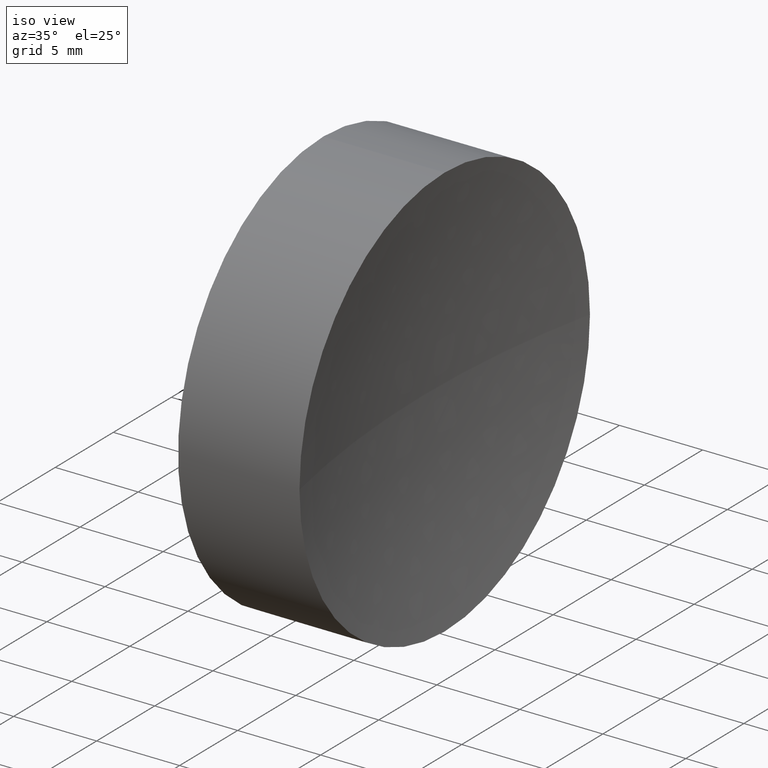
[diagram: clean part render]
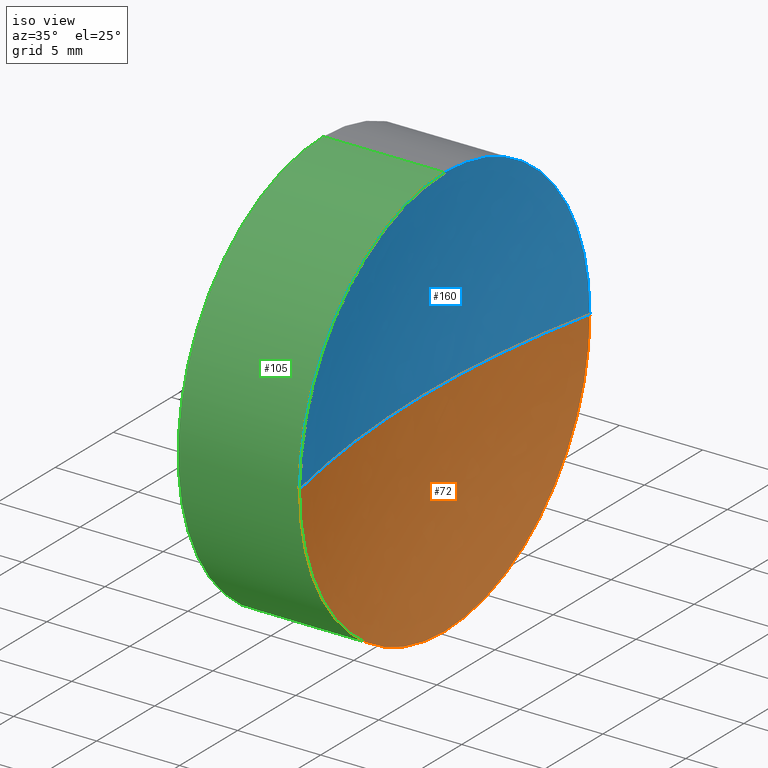
[diagram: same view with three faces highlighted in distinct colors, each labeled with its STEP entity id]
A machine part, iso view with three faces highlighted in distinct colors.
Their STEP definitions:

[orange] entity #72 — the highlighted spherical surface has radius 60 mm.
#2 = DIRECTION ( 'NONE',  ( 1.000000000000000000, 0.0000000000000000000, 0.0000000000000000000 ) ) ;
#5 = DIRECTION ( 'NONE',  ( 0.0000000000000000000, 0.0000000000000000000, 1.000000000000000000 ) ) ;
#7 = FACE_OUTER_BOUND ( 'NONE', #111, .T. ) ;
#12 = ORIENTED_EDGE ( 'NONE', *, *, #133, .F. ) ;
#19 = DIRECTION ( 'NONE',  ( -1.000000000000000000, -0.0000000000000000000, -0.0000000000000000000 ) ) ;
#23 = CIRCLE ( 'NONE', #35, 12.50000000000003900 ) ;
#24 = VERTEX_POINT ( 'NONE', #185 ) ;
#31 = VERTEX_POINT ( 'NONE', #58 ) ;
#34 = CARTESIAN_POINT ( 'NONE',  ( 122.4091825781601600, 69.37802112337243400, 0.0000000000000000000 ) ) ;
#35 = AXIS2_PLACEMENT_3D ( 'NONE', #63, #108, #165 ) ;
#39 = VERTEX_POINT ( 'NONE', #56 ) ;
#49 = ORIENTED_EDGE ( 'NONE', *, *, #149, .F. ) ;
#51 = ORIENTED_EDGE ( 'NONE', *, *, #70, .T. ) ;
#56 = CARTESIAN_POINT ( 'NONE',  ( 122.4091825781601700, 81.87802112337246300, 0.0000000000000000000 ) ) ;
#58 = CARTESIAN_POINT ( 'NONE',  ( 121.0926555496876500, 69.37802112337239200, 0.0000000000000000000 ) ) ;
#59 = CARTESIAN_POINT ( 'NONE',  ( 181.0926555496876300, 69.37802112337239200, 0.0000000000000000000 ) ) ;
#62 = CARTESIAN_POINT ( 'NONE',  ( 181.0926555496876300, 69.37802112337239200, 0.0000000000000000000 ) ) ;
#63 = CARTESIAN_POINT ( 'NONE',  ( 122.4091825781601600, 69.37802112337243400, 0.0000000000000000000 ) ) ;
#65 = AXIS2_PLACEMENT_3D ( 'NONE', #180, #150, #148 ) ;
#70 = EDGE_CURVE ( 'NONE', #39, #31, #183, .T. ) ;
#72 = ADVANCED_FACE ( 'NONE', ( #7 ), #152, .F. ) ;
#79 = CARTESIAN_POINT ( 'NONE',  ( 122.4091825781601700, 56.87802112337237000, -1.530808498934194300E-015 ) ) ;
#80 = AXIS2_PLACEMENT_3D ( 'NONE', #62, #139, #2 ) ;
#85 = VERTEX_POINT ( 'NONE', #79 ) ;
#91 = DIRECTION ( 'NONE',  ( 0.0000000000000000000, 1.000000000000000000, 1.224646799147353500E-016 ) ) ;
#95 = DIRECTION ( 'NONE',  ( 0.0000000000000000000, 1.224646799147353200E-016, -1.000000000000000000 ) ) ;
#100 = CIRCLE ( 'NONE', #169, 59.99999999999998600 ) ;
#108 = DIRECTION ( 'NONE',  ( -1.000000000000000000, -0.0000000000000000000, -0.0000000000000000000 ) ) ;
#111 = EDGE_LOOP ( 'NONE', ( #12, #49, #161, #51 ) ) ;
#133 = EDGE_CURVE ( 'NONE', #85, #31, #100, .T. ) ;
#139 = DIRECTION ( 'NONE',  ( 0.0000000000000000000, 0.0000000000000000000, 1.000000000000000000 ) ) ;
#143 = EDGE_CURVE ( 'NONE', #39, #24, #170, .T. ) ;
#148 = DIRECTION ( 'NONE',  ( 0.0000000000000000000, 1.000000000000000000, 0.0000000000000000000 ) ) ;
#149 = EDGE_CURVE ( 'NONE', #24, #85, #23, .T. ) ;
#150 = DIRECTION ( 'NONE',  ( 0.0000000000000000000, 0.0000000000000000000, -1.000000000000000000 ) ) ;
#152 = SPHERICAL_SURFACE ( 'NONE', #65, 60.00000000000000000 ) ;
#161 = ORIENTED_EDGE ( 'NONE', *, *, #143, .F. ) ;
#165 = DIRECTION ( 'NONE',  ( 0.0000000000000000000, 0.0000000000000000000, 1.000000000000000000 ) ) ;
#167 = AXIS2_PLACEMENT_3D ( 'NONE', #34, #19, #5 ) ;
#169 = AXIS2_PLACEMENT_3D ( 'NONE', #59, #95, #91 ) ;
#170 = CIRCLE ( 'NONE', #167, 12.50000000000003900 ) ;
#180 = CARTESIAN_POINT ( 'NONE',  ( 181.0926555496876300, 69.37802112337239200, 0.0000000000000000000 ) ) ;
#183 = CIRCLE ( 'NONE', #80, 60.00000000000000000 ) ;
#185 = CARTESIAN_POINT ( 'NONE',  ( 122.4091825781601600, 69.37802112337243400, -12.50000000000003700 ) ) ;

[blue] entity #160 — the highlighted spherical surface has radius 60 mm.
#1 = DIRECTION ( 'NONE',  ( 0.0000000000000000000, 0.0000000000000000000, -1.000000000000000000 ) ) ;
#2 = DIRECTION ( 'NONE',  ( 1.000000000000000000, 0.0000000000000000000, 0.0000000000000000000 ) ) ;
#9 = ORIENTED_EDGE ( 'NONE', *, *, #133, .T. ) ;
#16 = CARTESIAN_POINT ( 'NONE',  ( 181.0926555496876300, 69.37802112337239200, 0.0000000000000000000 ) ) ;
#18 = DIRECTION ( 'NONE',  ( -1.000000000000000000, -0.0000000000000000000, -0.0000000000000000000 ) ) ;
#25 = AXIS2_PLACEMENT_3D ( 'NONE', #175, #18, #33 ) ;
#29 = EDGE_CURVE ( 'NONE', #179, #39, #60, .T. ) ;
#31 = VERTEX_POINT ( 'NONE', #58 ) ;
#33 = DIRECTION ( 'NONE',  ( 0.0000000000000000000, 0.0000000000000000000, 1.000000000000000000 ) ) ;
#39 = VERTEX_POINT ( 'NONE', #56 ) ;
#42 = DIRECTION ( 'NONE',  ( 0.0000000000000000000, 0.0000000000000000000, 1.000000000000000000 ) ) ;
#45 = DIRECTION ( 'NONE',  ( 0.0000000000000000000, 1.000000000000000000, 0.0000000000000000000 ) ) ;
#52 = ORIENTED_EDGE ( 'NONE', *, *, #70, .F. ) ;
#54 = CIRCLE ( 'NONE', #25, 12.50000000000003900 ) ;
#56 = CARTESIAN_POINT ( 'NONE',  ( 122.4091825781601700, 81.87802112337246300, 0.0000000000000000000 ) ) ;
#58 = CARTESIAN_POINT ( 'NONE',  ( 121.0926555496876500, 69.37802112337239200, 0.0000000000000000000 ) ) ;
#59 = CARTESIAN_POINT ( 'NONE',  ( 181.0926555496876300, 69.37802112337239200, 0.0000000000000000000 ) ) ;
#60 = CIRCLE ( 'NONE', #176, 12.50000000000003900 ) ;
#62 = CARTESIAN_POINT ( 'NONE',  ( 181.0926555496876300, 69.37802112337239200, 0.0000000000000000000 ) ) ;
#69 = ORIENTED_EDGE ( 'NONE', *, *, #157, .F. ) ;
#70 = EDGE_CURVE ( 'NONE', #39, #31, #183, .T. ) ;
#79 = CARTESIAN_POINT ( 'NONE',  ( 122.4091825781601700, 56.87802112337237000, -1.530808498934194300E-015 ) ) ;
#80 = AXIS2_PLACEMENT_3D ( 'NONE', #62, #139, #2 ) ;
#85 = VERTEX_POINT ( 'NONE', #79 ) ;
#86 = FACE_OUTER_BOUND ( 'NONE', #125, .T. ) ;
#91 = DIRECTION ( 'NONE',  ( 0.0000000000000000000, 1.000000000000000000, 1.224646799147353500E-016 ) ) ;
#95 = DIRECTION ( 'NONE',  ( 0.0000000000000000000, 1.224646799147353200E-016, -1.000000000000000000 ) ) ;
#100 = CIRCLE ( 'NONE', #169, 59.99999999999998600 ) ;
#112 = CARTESIAN_POINT ( 'NONE',  ( 122.4091825781601600, 69.37802112337243400, 12.50000000000003700 ) ) ;
#118 = AXIS2_PLACEMENT_3D ( 'NONE', #16, #1, #45 ) ;
#125 = EDGE_LOOP ( 'NONE', ( #69, #9, #52, #137 ) ) ;
#133 = EDGE_CURVE ( 'NONE', #85, #31, #100, .T. ) ;
#137 = ORIENTED_EDGE ( 'NONE', *, *, #29, .F. ) ;
#139 = DIRECTION ( 'NONE',  ( 0.0000000000000000000, 0.0000000000000000000, 1.000000000000000000 ) ) ;
#157 = EDGE_CURVE ( 'NONE', #85, #179, #54, .T. ) ;
#159 = CARTESIAN_POINT ( 'NONE',  ( 122.4091825781601600, 69.37802112337243400, 0.0000000000000000000 ) ) ;
#160 = ADVANCED_FACE ( 'NONE', ( #86 ), #168, .F. ) ;
#168 = SPHERICAL_SURFACE ( 'NONE', #118, 60.00000000000000000 ) ;
#169 = AXIS2_PLACEMENT_3D ( 'NONE', #59, #95, #91 ) ;
#173 = DIRECTION ( 'NONE',  ( -1.000000000000000000, -0.0000000000000000000, -0.0000000000000000000 ) ) ;
#175 = CARTESIAN_POINT ( 'NONE',  ( 122.4091825781601600, 69.37802112337243400, 0.0000000000000000000 ) ) ;
#176 = AXIS2_PLACEMENT_3D ( 'NONE', #159, #173, #42 ) ;
#179 = VERTEX_POINT ( 'NONE', #112 ) ;
#183 = CIRCLE ( 'NONE', #80, 60.00000000000000000 ) ;

[green] entity #105 — the highlighted cylindrical surface (partial cylindrical patch) has radius 12.5 mm, axis along (-1, -0, -0).
#18 = DIRECTION ( 'NONE',  ( -1.000000000000000000, -0.0000000000000000000, -0.0000000000000000000 ) ) ;
#21 = CARTESIAN_POINT ( 'NONE',  ( 108.9851430021651000, 69.37802112337243400, 12.50000000000001800 ) ) ;
#23 = CIRCLE ( 'NONE', #35, 12.50000000000003900 ) ;
#24 = VERTEX_POINT ( 'NONE', #185 ) ;
#25 = AXIS2_PLACEMENT_3D ( 'NONE', #175, #18, #33 ) ;
#26 = EDGE_CURVE ( 'NONE', #186, #146, #129, .T. ) ;
#27 = LINE ( 'NONE', #21, #181 ) ;
#33 = DIRECTION ( 'NONE',  ( 0.0000000000000000000, 0.0000000000000000000, 1.000000000000000000 ) ) ;
#35 = AXIS2_PLACEMENT_3D ( 'NONE', #63, #108, #165 ) ;
#50 = VECTOR ( 'NONE', #67, 1000.000000000000000 ) ;
#53 = AXIS2_PLACEMENT_3D ( 'NONE', #144, #106, #102 ) ;
#54 = CIRCLE ( 'NONE', #25, 12.50000000000003900 ) ;
#63 = CARTESIAN_POINT ( 'NONE',  ( 122.4091825781601600, 69.37802112337243400, 0.0000000000000000000 ) ) ;
#64 = DIRECTION ( 'NONE',  ( 0.0000000000000000000, 0.0000000000000000000, 1.000000000000000000 ) ) ;
#66 = ORIENTED_EDGE ( 'NONE', *, *, #172, .F. ) ;
#67 = DIRECTION ( 'NONE',  ( -1.000000000000000000, -0.0000000000000000000, -0.0000000000000000000 ) ) ;
#79 = CARTESIAN_POINT ( 'NONE',  ( 122.4091825781601700, 56.87802112337237000, -1.530808498934194300E-015 ) ) ;
#82 = CARTESIAN_POINT ( 'NONE',  ( 115.0926555349195200, 69.37802112337243400, -12.49999999999999600 ) ) ;
#83 = ORIENTED_EDGE ( 'NONE', *, *, #26, .F. ) ;
#85 = VERTEX_POINT ( 'NONE', #79 ) ;
#88 = CYLINDRICAL_SURFACE ( 'NONE', #127, 12.50000000000001800 ) ;
#93 = CARTESIAN_POINT ( 'NONE',  ( 108.9851430021651000, 69.37802112337243400, 0.0000000000000000000 ) ) ;
#102 = DIRECTION ( 'NONE',  ( 0.0000000000000000000, 0.0000000000000000000, 1.000000000000000000 ) ) ;
#105 = ADVANCED_FACE ( 'NONE', ( #140 ), #88, .T. ) ;
#106 = DIRECTION ( 'NONE',  ( -1.000000000000000000, -0.0000000000000000000, -0.0000000000000000000 ) ) ;
#108 = DIRECTION ( 'NONE',  ( -1.000000000000000000, -0.0000000000000000000, -0.0000000000000000000 ) ) ;
#112 = CARTESIAN_POINT ( 'NONE',  ( 122.4091825781601600, 69.37802112337243400, 12.50000000000003700 ) ) ;
#115 = EDGE_LOOP ( 'NONE', ( #66, #126, #132, #120, #83 ) ) ;
#120 = ORIENTED_EDGE ( 'NONE', *, *, #155, .T. ) ;
#123 = CARTESIAN_POINT ( 'NONE',  ( 115.0926555349195200, 69.37802112337243400, 12.49999999999999600 ) ) ;
#126 = ORIENTED_EDGE ( 'NONE', *, *, #149, .T. ) ;
#127 = AXIS2_PLACEMENT_3D ( 'NONE', #93, #178, #64 ) ;
#128 = CARTESIAN_POINT ( 'NONE',  ( 108.9851430021651000, 69.37802112337243400, -12.50000000000001800 ) ) ;
#129 = CIRCLE ( 'NONE', #53, 12.49999999999999600 ) ;
#132 = ORIENTED_EDGE ( 'NONE', *, *, #157, .T. ) ;
#140 = FACE_OUTER_BOUND ( 'NONE', #115, .T. ) ;
#144 = CARTESIAN_POINT ( 'NONE',  ( 115.0926555349195200, 69.37802112337243400, 0.0000000000000000000 ) ) ;
#146 = VERTEX_POINT ( 'NONE', #123 ) ;
#149 = EDGE_CURVE ( 'NONE', #24, #85, #23, .T. ) ;
#155 = EDGE_CURVE ( 'NONE', #179, #146, #27, .T. ) ;
#157 = EDGE_CURVE ( 'NONE', #85, #179, #54, .T. ) ;
#165 = DIRECTION ( 'NONE',  ( 0.0000000000000000000, 0.0000000000000000000, 1.000000000000000000 ) ) ;
#166 = DIRECTION ( 'NONE',  ( -1.000000000000000000, -0.0000000000000000000, -0.0000000000000000000 ) ) ;
#172 = EDGE_CURVE ( 'NONE', #24, #186, #174, .T. ) ;
#174 = LINE ( 'NONE', #128, #50 ) ;
#175 = CARTESIAN_POINT ( 'NONE',  ( 122.4091825781601600, 69.37802112337243400, 0.0000000000000000000 ) ) ;
#178 = DIRECTION ( 'NONE',  ( -1.000000000000000000, -0.0000000000000000000, -0.0000000000000000000 ) ) ;
#179 = VERTEX_POINT ( 'NONE', #112 ) ;
#181 = VECTOR ( 'NONE', #166, 1000.000000000000000 ) ;
#185 = CARTESIAN_POINT ( 'NONE',  ( 122.4091825781601600, 69.37802112337243400, -12.50000000000003700 ) ) ;
#186 = VERTEX_POINT ( 'NONE', #82 ) ;